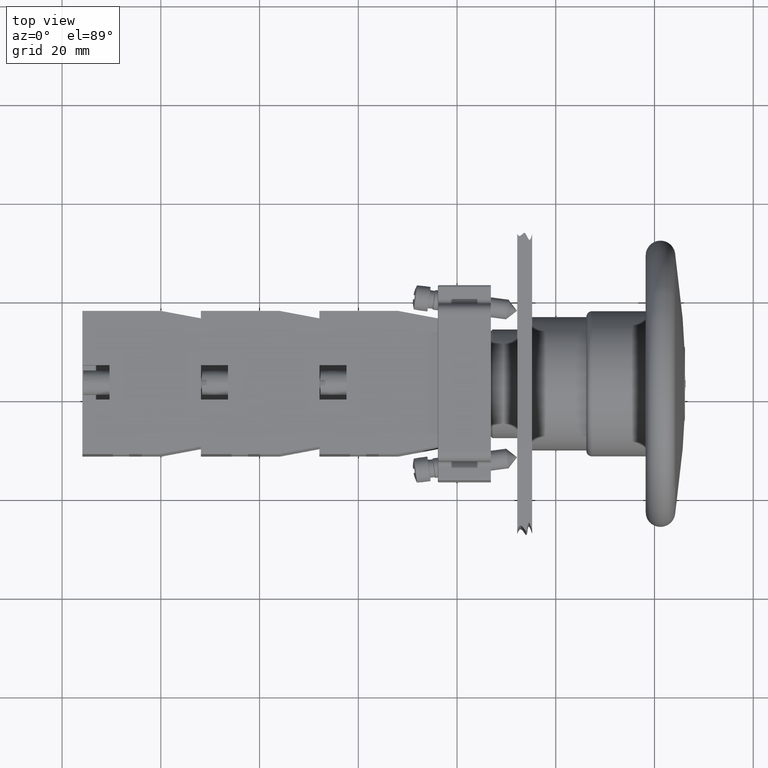
[diagram: clean part render]
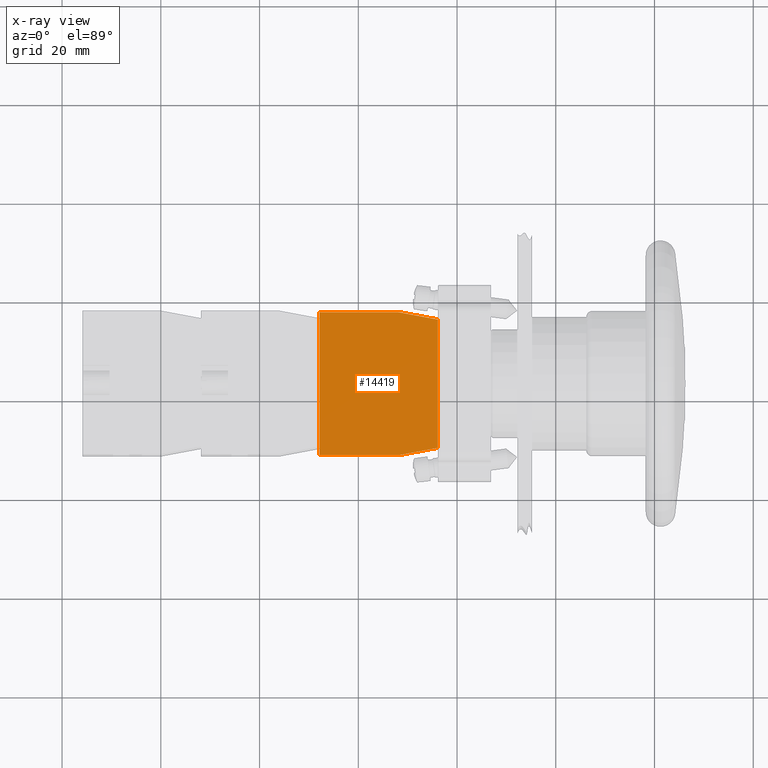
[diagram: x-ray — body ghosted, one internal face saturated and labeled with its STEP entity id]
A machine part, top view, then the same camera in x-ray: the body is ghosted and one INTERNAL B-rep face — a face not visible from any outside direction — is saturated and labeled: STEP entity #14419.
In plain terms, the highlighted planar face has unit normal (0, -0, -1).
Its self-contained STEP definition (entity closure, byte-faithful):
#12724=CARTESIAN_POINT('',(-44.936741828918471,23.797073323279623,0.0));
#12725=VERTEX_POINT('',#12724);
#12732=CARTESIAN_POINT('',(-44.936741828918457,7.797073323279626,0.0));
#12733=VERTEX_POINT('',#12732);
#12734=CARTESIAN_POINT('',(-44.936741828918457,7.797073323279626,0.0));
#12735=DIRECTION('',(0.0,1.0,0.0));
#12736=VECTOR('',#12735,15.999999999999996);
#12737=LINE('',#12734,#12736);
#12738=EDGE_CURVE('',#12733,#12725,#12737,.T.);
#12915=CARTESIAN_POINT('',(-43.436741828918457,-0.202926676720380,0.0));
#12916=VERTEX_POINT('',#12915);
#12923=CARTESIAN_POINT('',(-17.436741828918457,-0.202926676720377,0.0));
#12924=VERTEX_POINT('',#12923);
#12925=CARTESIAN_POINT('',(-17.436741828918457,-0.202926676720377,0.0));
#12926=DIRECTION('',(-1.0,0.0,0.0));
#12927=VECTOR('',#12926,26.0);
#12928=LINE('',#12925,#12927);
#12929=EDGE_CURVE('',#12924,#12916,#12928,.T.);
#14273=CARTESIAN_POINT('',(-15.936741828918466,23.797073323279626,0.0));
#14274=VERTEX_POINT('',#14273);
#14281=CARTESIAN_POINT('',(-44.936741828918471,23.797073323279623,0.0));
#14282=DIRECTION('',(1.0,0.0,0.0));
#14283=VECTOR('',#14282,29.000000000000007);
#14284=LINE('',#14281,#14283);
#14285=EDGE_CURVE('',#12725,#14274,#14284,.T.);
#14321=CARTESIAN_POINT('',(-15.936741828918466,7.797073323279626,0.0));
#14322=VERTEX_POINT('',#14321);
#14329=CARTESIAN_POINT('',(-15.936741828918466,23.797073323279626,0.0));
#14330=DIRECTION('',(0.0,-1.0,0.0));
#14331=VECTOR('',#14330,16.0);
#14332=LINE('',#14329,#14331);
#14333=EDGE_CURVE('',#14274,#14322,#14332,.T.);
#14361=CARTESIAN_POINT('',(-15.936741828918466,7.797073323279626,0.0));
#14362=DIRECTION('',(-0.184288535050184,-0.982872186934322,0.0));
#14363=VECTOR('',#14362,8.139410298049855);
#14364=LINE('',#14361,#14363);
#14365=EDGE_CURVE('',#14322,#12924,#14364,.T.);
#14378=CARTESIAN_POINT('',(-43.436741828918457,-0.202926676720380,0.0));
#14379=DIRECTION('',(-0.184288535050185,0.982872186934322,0.0));
#14380=VECTOR('',#14379,8.139410298049860);
#14381=LINE('',#14378,#14380);
#14382=EDGE_CURVE('',#12916,#12733,#14381,.T.);
#14406=CARTESIAN_POINT('',(-30.436741828918464,12.124046801833057,0.0));
#14407=DIRECTION('',(0.0,0.0,1.0));
#14408=DIRECTION('',(1.0,0.0,0.0));
#14409=AXIS2_PLACEMENT_3D('',#14406,#14407,#14408);
#14410=PLANE('',#14409);
#14411=ORIENTED_EDGE('',*,*,#14285,.T.);
#14412=ORIENTED_EDGE('',*,*,#14333,.T.);
#14413=ORIENTED_EDGE('',*,*,#14365,.T.);
#14414=ORIENTED_EDGE('',*,*,#12929,.T.);
#14415=ORIENTED_EDGE('',*,*,#14382,.T.);
#14416=ORIENTED_EDGE('',*,*,#12738,.T.);
#14417=EDGE_LOOP('',(#14411,#14412,#14413,#14414,#14415,#14416));
#14418=FACE_OUTER_BOUND('',#14417,.T.);
#14419=ADVANCED_FACE('',(#14418),#14410,.F.);